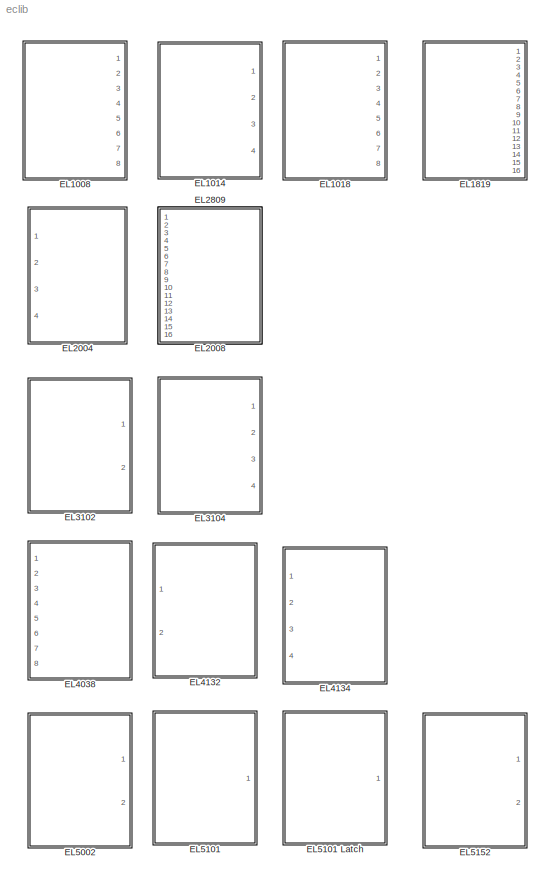
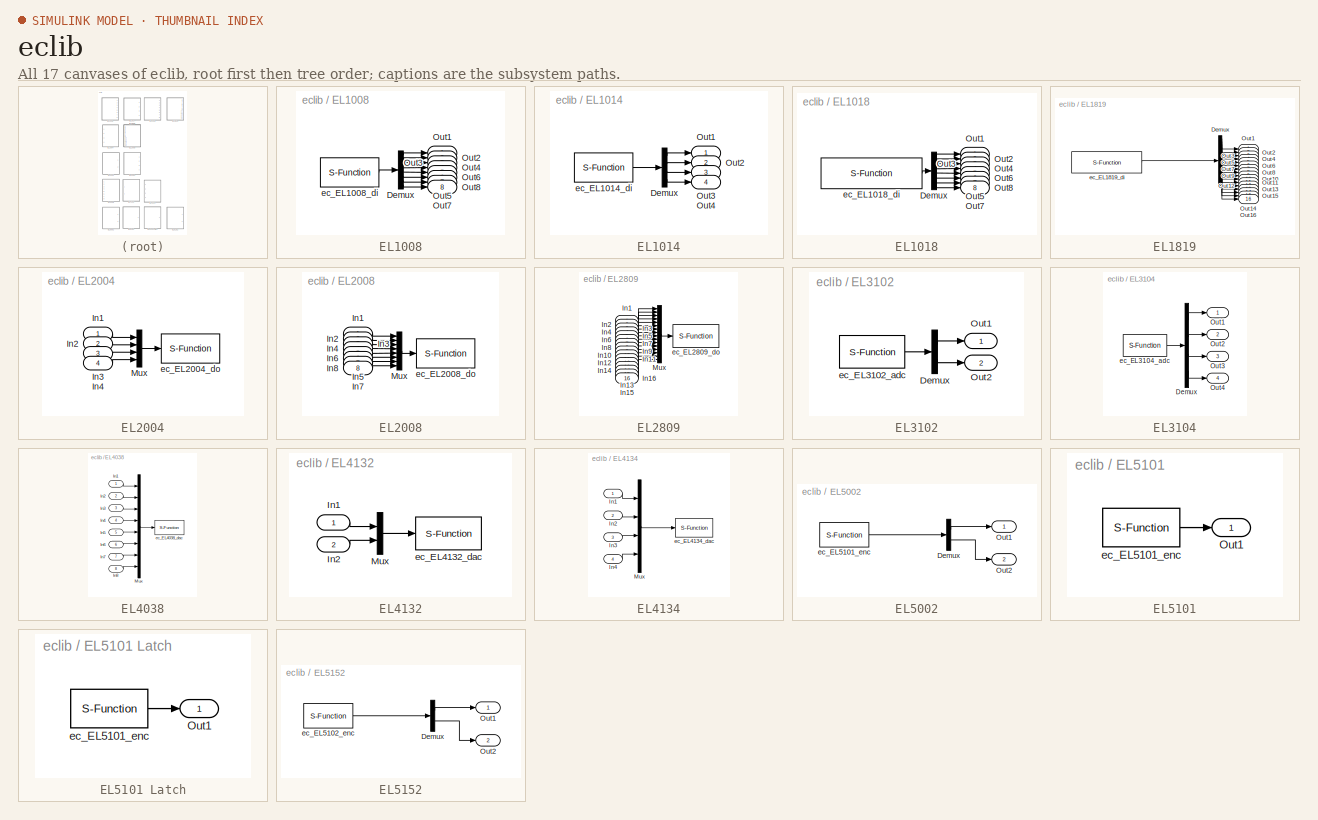
[diagram: thumbnail index - all 17 canvases of the model, root first then tree order]
MODEL eclib
KIND model
BLOCK [SubSystem] EL1008
  FunctionWithSeparateData = off
  MaskEnableString = on
  MaskHideContents = off
  MaskIconFrame = on
  MaskIconOpaque = on
  MaskIconRotate = none
  MaskIconUnits = autoscale
  MaskPortRotate = default
  MaskPromptString = Link id (>=0)
  MaskStyleString = edit
  MaskToolTipString = on
  MaskTunableValueString = on
  MaskType = EL1008
  MaskValueString = 0
  MaskVariables = link_id=@1;
  MaskVisibilityString = on
  MinAlgLoopOccurrences = off
  Opaque = off
  Ports = [0, 8]
  PropExecContextOutsideSubsystem = off
  RTWSystemCode = Auto
  RequestExecContextInheritance = off
  SID = 1
BLOCK [Demux] EL1008/Demux
  DisplayOption = bar
  Outputs = 8
  Ports = [1, 8]
  SID = 2
BLOCK [Outport] EL1008/Out1
  IconDisplay = Port number
  SID = 4
BLOCK [Outport] EL1008/Out2
  IconDisplay = Port number
  Port = 2
  SID = 5
BLOCK [Outport] EL1008/Out3
  IconDisplay = Port number
  Port = 3
  SID = 6
BLOCK [Outport] EL1008/Out4
  IconDisplay = Port number
  Port = 4
  SID = 7
BLOCK [Outport] EL1008/Out5
  IconDisplay = Port number
  Port = 5
  SID = 8
BLOCK [Outport] EL1008/Out6
  IconDisplay = Port number
  Port = 6
  SID = 9
BLOCK [Outport] EL1008/Out7
  IconDisplay = Port number
  Port = 7
  SID = 10
BLOCK [Outport] EL1008/Out8
  IconDisplay = Port number
  Port = 8
  SID = 11
BLOCK [S-Function] EL1008/ec_EL1008_di
  EnableBusSupport = off
  FunctionName = ec_EL1008_di
  MaskEnableString = on
  MaskIconFrame = on
  MaskIconOpaque = on
  MaskIconRotate = none
  MaskIconUnits = autoscale
  MaskPortRotate = default
  MaskPromptString = digital in id (start from 1)
  MaskStyleString = edit
  MaskToolTipString = on
  MaskTunableValueString = on
  MaskValueString = link_id
  MaskVariables = link_id=@1;
  MaskVisibilityString = on
  Parameters = link_id
  Ports = [0, 1]
  SID = 3
BLOCK [SubSystem] EL1014
  FunctionWithSeparateData = off
  MaskEnableString = on
  MaskHideContents = off
  MaskIconFrame = on
  MaskIconOpaque = on
  MaskIconRotate = none
  MaskIconUnits = autoscale
  MaskPortRotate = default
  MaskPromptString = Link id (>=0)
  MaskStyleString = edit
  MaskToolTipString = on
  MaskTunableValueString = on
  MaskType = EL1014
  MaskValueString = 0
  MaskVariables = link_id=&1;
  MaskVisibilityString = on
  MinAlgLoopOccurrences = off
  Opaque = off
  Ports = [0, 4]
  PropExecContextOutsideSubsystem = off
  RTWSystemCode = Auto
  RequestExecContextInheritance = off
  SID = 12
BLOCK [Demux] EL1014/Demux
  DisplayOption = bar
  Ports = [1, 4]
  SID = 13
BLOCK [Outport] EL1014/Out1
  IconDisplay = Port number
  SID = 15
BLOCK [Outport] EL1014/Out2
  IconDisplay = Port number
  Port = 2
  SID = 16
BLOCK [Outport] EL1014/Out3
  IconDisplay = Port number
  Port = 3
  SID = 17
BLOCK [Outport] EL1014/Out4
  IconDisplay = Port number
  Port = 4
  SID = 18
BLOCK [S-Function] EL1014/ec_EL1014_di
  EnableBusSupport = off
  FunctionName = ec_EL1014_di
  MaskEnableString = on
  MaskIconFrame = on
  MaskIconOpaque = on
  MaskIconRotate = none
  MaskIconUnits = autoscale
  MaskPortRotate = default
  MaskPromptString = digital in id (start from 1)
  MaskStyleString = edit
  MaskToolTipString = on
  MaskTunableValueString = on
  MaskValueString = link_id
  MaskVariables = link_id=@1;
  MaskVisibilityString = on
  Parameters = link_id
  Ports = [0, 1]
  SID = 14
BLOCK [SubSystem] EL1018
  FunctionWithSeparateData = off
  MaskEnableString = on
  MaskHideContents = off
  MaskIconFrame = on
  MaskIconOpaque = on
  MaskIconRotate = none
  MaskIconUnits = autoscale
  MaskPortRotate = default
  MaskPromptString = Link id (>=0)
  MaskStyleString = edit
  MaskToolTipString = on
  MaskTunableValueString = on
  MaskType = EL1008
  MaskValueString = 0
  MaskVariables = link_id=@1;
  MaskVisibilityString = on
  MinAlgLoopOccurrences = off
  Opaque = off
  Ports = [0, 8]
  PropExecContextOutsideSubsystem = off
  RTWSystemCode = Auto
  RequestExecContextInheritance = off
  SID = 19
BLOCK [Demux] EL1018/Demux
  DisplayOption = bar
  Outputs = 8
  Ports = [1, 8]
  SID = 20
BLOCK [Outport] EL1018/Out1
  IconDisplay = Port number
  SID = 22
BLOCK [Outport] EL1018/Out2
  IconDisplay = Port number
  Port = 2
  SID = 23
BLOCK [Outport] EL1018/Out3
  IconDisplay = Port number
  Port = 3
  SID = 24
BLOCK [Outport] EL1018/Out4
  IconDisplay = Port number
  Port = 4
  SID = 25
BLOCK [Outport] EL1018/Out5
  IconDisplay = Port number
  Port = 5
  SID = 26
BLOCK [Outport] EL1018/Out6
  IconDisplay = Port number
  Port = 6
  SID = 27
BLOCK [Outport] EL1018/Out7
  IconDisplay = Port number
  Port = 7
  SID = 28
BLOCK [Outport] EL1018/Out8
  IconDisplay = Port number
  Port = 8
  SID = 29
BLOCK [S-Function] EL1018/ec_EL1018_di
  EnableBusSupport = off
  FunctionName = ec_EL1018_di
  MaskEnableString = on
  MaskIconFrame = on
  MaskIconOpaque = on
  MaskIconRotate = none
  MaskIconUnits = autoscale
  MaskPortRotate = default
  MaskPromptString = digital in id (start from 1)
  MaskStyleString = edit
  MaskToolTipString = on
  MaskTunableValueString = on
  MaskValueString = link_id
  MaskVariables = link_id=@1;
  MaskVisibilityString = on
  Parameters = link_id
  Ports = [0, 1]
  SID = 21
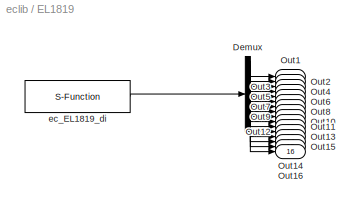
BLOCK [SubSystem] EL1819
  FunctionWithSeparateData = off
  MaskEnableString = on
  MaskHideContents = off
  MaskIconFrame = on
  MaskIconOpaque = on
  MaskIconRotate = none
  MaskIconUnits = autoscale
  MaskPortRotate = default
  MaskPromptString = Link id (>=0)
  MaskStyleString = edit
  MaskToolTipString = on
  MaskTunableValueString = on
  MaskType = EL1819
  MaskValueString = 0
  MaskVariables = link_id=@1;
  MaskVisibilityString = on
  MinAlgLoopOccurrences = off
  Opaque = off
  Ports = [0, 16]
  PropExecContextOutsideSubsystem = off
  RTWSystemCode = Auto
  RequestExecContextInheritance = off
  SID = 119
BLOCK [Demux] EL1819/Demux
  DisplayOption = bar
  Outputs = 16
  Ports = [1, 16]
  SID = 120
BLOCK [Outport] EL1819/Out1
  IconDisplay = Port number
  SID = 122
BLOCK [Outport] EL1819/Out10
  IconDisplay = Port number
  Port = 10
  SID = 131
BLOCK [Outport] EL1819/Out11
  IconDisplay = Port number
  Port = 11
  SID = 132
BLOCK [Outport] EL1819/Out12
  IconDisplay = Port number
  Port = 12
  SID = 133
BLOCK [Outport] EL1819/Out13
  IconDisplay = Port number
  Port = 13
  SID = 134
BLOCK [Outport] EL1819/Out14
  IconDisplay = Port number
  Port = 14
  SID = 135
BLOCK [Outport] EL1819/Out15
  IconDisplay = Port number
  Port = 15
  SID = 136
BLOCK [Outport] EL1819/Out16
  IconDisplay = Port number
  Port = 16
  SID = 137
BLOCK [Outport] EL1819/Out2
  IconDisplay = Port number
  Port = 2
  SID = 123
BLOCK [Outport] EL1819/Out3
  IconDisplay = Port number
  Port = 3
  SID = 124
BLOCK [Outport] EL1819/Out4
  IconDisplay = Port number
  Port = 4
  SID = 125
BLOCK [Outport] EL1819/Out5
  IconDisplay = Port number
  Port = 5
  SID = 126
BLOCK [Outport] EL1819/Out6
  IconDisplay = Port number
  Port = 6
  SID = 127
BLOCK [Outport] EL1819/Out7
  IconDisplay = Port number
  Port = 7
  SID = 128
BLOCK [Outport] EL1819/Out8
  IconDisplay = Port number
  Port = 8
  SID = 129
BLOCK [Outport] EL1819/Out9
  IconDisplay = Port number
  Port = 9
  SID = 130
BLOCK [S-Function] EL1819/ec_EL1819_di
  EnableBusSupport = off
  FunctionName = ec_EL1819_di
  MaskEnableString = on
  MaskIconFrame = on
  MaskIconOpaque = on
  MaskIconRotate = none
  MaskIconUnits = autoscale
  MaskPortRotate = default
  MaskPromptString = digital in id (start from 1)
  MaskStyleString = edit
  MaskToolTipString = on
  MaskTunableValueString = on
  MaskValueString = link_id
  MaskVariables = link_id=@1;
  MaskVisibilityString = on
  Parameters = link_id
  Ports = [0, 1]
  SID = 121
BLOCK [SubSystem] EL2004
  FunctionWithSeparateData = off
  MaskEnableString = on
  MaskHideContents = off
  MaskIconFrame = on
  MaskIconOpaque = on
  MaskIconRotate = none
  MaskIconUnits = autoscale
  MaskPortRotate = default
  MaskPromptString = Link id (>=0)
  MaskStyleString = edit
  MaskToolTipString = on
  MaskTunableValueString = on
  MaskType = EL2004
  MaskValueString = 0
  MaskVariables = link_id=@1;
  MaskVisibilityString = on
  MinAlgLoopOccurrences = off
  Opaque = off
  Ports = [4]
  PropExecContextOutsideSubsystem = off
  RTWSystemCode = Auto
  RequestExecContextInheritance = off
  SID = 30
BLOCK [Inport] EL2004/In1
  IconDisplay = Port number
  SID = 31
BLOCK [Inport] EL2004/In2
  IconDisplay = Port number
  Port = 2
  SID = 32
BLOCK [Inport] EL2004/In3
  IconDisplay = Port number
  Port = 3
  SID = 33
BLOCK [Inport] EL2004/In4
  IconDisplay = Port number
  Port = 4
  SID = 34
BLOCK [Mux] EL2004/Mux
  DisplayOption = bar
  Ports = [4, 1]
  SID = 35
BLOCK [S-Function] EL2004/ec_EL2004_do
  EnableBusSupport = off
  FunctionName = ec_EL2004_do
  MaskEnableString = on
  MaskIconFrame = on
  MaskIconOpaque = on
  MaskIconRotate = none
  MaskIconUnits = autoscale
  MaskPortRotate = default
  MaskPromptString = digital out id (start from 1)
  MaskStyleString = edit
  MaskToolTipString = on
  MaskTunableValueString = on
  MaskValueString = link_id
  MaskVariables = link_id=@1;
  MaskVisibilityString = on
  Parameters = link_id
  Ports = [1]
  SID = 36
BLOCK [SubSystem] EL2008
  FunctionWithSeparateData = off
  MaskEnableString = on
  MaskHideContents = off
  MaskIconFrame = on
  MaskIconOpaque = on
  MaskIconRotate = none
  MaskIconUnits = autoscale
  MaskPortRotate = default
  MaskPromptString = Link id (>=0)
  MaskStyleString = edit
  MaskToolTipString = on
  MaskTunableValueString = on
  MaskType = EL2008
  MaskValueString = 0
  MaskVariables = link_id=@1;
  MaskVisibilityString = on
  MinAlgLoopOccurrences = off
  Opaque = off
  Ports = [8]
  PropExecContextOutsideSubsystem = off
  RTWSystemCode = Auto
  RequestExecContextInheritance = off
  SID = 37
BLOCK [Inport] EL2008/In1
  IconDisplay = Port number
  SID = 38
BLOCK [Inport] EL2008/In2
  IconDisplay = Port number
  Port = 2
  SID = 39
BLOCK [Inport] EL2008/In3
  IconDisplay = Port number
  Port = 3
  SID = 40
BLOCK [Inport] EL2008/In4
  IconDisplay = Port number
  Port = 4
  SID = 41
BLOCK [Inport] EL2008/In5
  IconDisplay = Port number
  Port = 5
  SID = 42
BLOCK [Inport] EL2008/In6
  IconDisplay = Port number
  Port = 6
  SID = 43
BLOCK [Inport] EL2008/In7
  IconDisplay = Port number
  Port = 7
  SID = 44
BLOCK [Inport] EL2008/In8
  IconDisplay = Port number
  Port = 8
  SID = 45
BLOCK [Mux] EL2008/Mux
  DisplayOption = bar
  Inputs = 8
  Ports = [8, 1]
  SID = 46
BLOCK [S-Function] EL2008/ec_EL2008_do
  EnableBusSupport = off
  FunctionName = ec_EL2008_do
  MaskEnableString = on
  MaskIconFrame = on
  MaskIconOpaque = on
  MaskIconRotate = none
  MaskIconUnits = autoscale
  MaskPortRotate = default
  MaskPromptString = digital out id (start from 1)
  MaskStyleString = edit
  MaskToolTipString = on
  MaskTunableValueString = on
  MaskValueString = link_id
  MaskVariables = link_id=@1;
  MaskVisibilityString = on
  Parameters = link_id
  Ports = [1]
  SID = 47
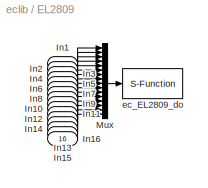
BLOCK [SubSystem] EL2809
  FunctionWithSeparateData = off
  MaskEnableString = on
  MaskHideContents = off
  MaskIconFrame = on
  MaskIconOpaque = on
  MaskIconRotate = none
  MaskIconUnits = autoscale
  MaskPortRotate = default
  MaskPromptString = Link id (>=0)
  MaskStyleString = edit
  MaskToolTipString = on
  MaskTunableValueString = on
  MaskType = EL2809
  MaskValueString = 1
  MaskVariables = link_id=@1;
  MaskVisibilityString = on
  MinAlgLoopOccurrences = off
  Opaque = off
  Ports = [16]
  PropExecContextOutsideSubsystem = off
  RTWSystemCode = Auto
  RequestExecContextInheritance = off
  SID = 237
BLOCK [Inport] EL2809/In1
  IconDisplay = Port number
  SID = 238
BLOCK [Inport] EL2809/In10
  IconDisplay = Port number
  Port = 10
  SID = 247
BLOCK [Inport] EL2809/In11
  IconDisplay = Port number
  Port = 11
  SID = 248
BLOCK [Inport] EL2809/In12
  IconDisplay = Port number
  Port = 12
  SID = 249
BLOCK [Inport] EL2809/In13
  IconDisplay = Port number
  Port = 13
  SID = 250
BLOCK [Inport] EL2809/In14
  IconDisplay = Port number
  Port = 14
  SID = 251
BLOCK [Inport] EL2809/In15
  IconDisplay = Port number
  Port = 15
  SID = 252
BLOCK [Inport] EL2809/In16
  IconDisplay = Port number
  Port = 16
  SID = 253
BLOCK [Inport] EL2809/In2
  IconDisplay = Port number
  Port = 2
  SID = 239
BLOCK [Inport] EL2809/In3
  IconDisplay = Port number
  Port = 3
  SID = 240
BLOCK [Inport] EL2809/In4
  IconDisplay = Port number
  Port = 4
  SID = 241
BLOCK [Inport] EL2809/In5
  IconDisplay = Port number
  Port = 5
  SID = 242
BLOCK [Inport] EL2809/In6
  IconDisplay = Port number
  Port = 6
  SID = 243
BLOCK [Inport] EL2809/In7
  IconDisplay = Port number
  Port = 7
  SID = 244
BLOCK [Inport] EL2809/In8
  IconDisplay = Port number
  Port = 8
  SID = 245
BLOCK [Inport] EL2809/In9
  IconDisplay = Port number
  Port = 9
  SID = 246
BLOCK [Mux] EL2809/Mux
  DisplayOption = bar
  Inputs = 16
  Ports = [16, 1]
  SID = 254
BLOCK [S-Function] EL2809/ec_EL2809_do
  EnableBusSupport = off
  FunctionName = ec_EL2809_do
  MaskEnableString = on
  MaskIconFrame = on
  MaskIconOpaque = on
  MaskIconRotate = none
  MaskIconUnits = autoscale
  MaskPortRotate = default
  MaskPromptString = digital out id (start from 1)
  MaskStyleString = edit
  MaskToolTipString = on
  MaskTunableValueString = on
  MaskValueString = link_id
  MaskVariables = link_id=@1;
  MaskVisibilityString = on
  Parameters = link_id
  Ports = [1]
  SID = 255
BLOCK [SubSystem] EL3102
  FunctionWithSeparateData = off
  MaskEnableString = on
  MaskHideContents = off
  MaskIconFrame = on
  MaskIconOpaque = on
  MaskIconRotate = none
  MaskIconUnits = autoscale
  MaskPortRotate = default
  MaskPromptString = Link id (>=0)
  MaskStyleString = edit
  MaskToolTipString = on
  MaskTunableValueString = on
  MaskType = EL3102
  MaskValueString = 0
  MaskVariables = link_id=@1;
  MaskVisibilityString = on
  MinAlgLoopOccurrences = off
  Opaque = off
  Ports = [0, 2]
  PropExecContextOutsideSubsystem = off
  RTWSystemCode = Auto
  RequestExecContextInheritance = off
  SID = 48
BLOCK [Demux] EL3102/Demux
  DisplayOption = bar
  Outputs = 2
  Ports = [1, 2]
  SID = 49
BLOCK [Outport] EL3102/Out1
  IconDisplay = Port number
  SID = 51
BLOCK [Outport] EL3102/Out2
  IconDisplay = Port number
  Port = 2
  SID = 52
BLOCK [S-Function] EL3102/ec_EL3102_adc
  EnableBusSupport = off
  FunctionName = ec_EL3102_adc
  MaskEnableString = on
  MaskIconFrame = on
  MaskIconOpaque = on
  MaskIconRotate = none
  MaskIconUnits = autoscale
  MaskPortRotate = default
  MaskPromptString = analog in id (start from 1)
  MaskStyleString = edit
  MaskToolTipString = on
  MaskTunableValueString = on
  MaskValueString = link_id
  MaskVariables = link_id=@1;
  MaskVisibilityString = on
  Parameters = link_id
  Ports = [0, 1]
  SID = 50
BLOCK [SubSystem] EL3104
  FunctionWithSeparateData = off
  MaskEnableString = on
  MaskHideContents = off
  MaskIconFrame = on
  MaskIconOpaque = on
  MaskIconRotate = none
  MaskIconUnits = autoscale
  MaskPortRotate = default
  MaskPromptString = Link id (>=0)
  MaskStyleString = edit
  MaskToolTipString = on
  MaskTunableValueString = on
  MaskType = EL3102
  MaskValueString = 0
  MaskVariables = link_id=@1;
  MaskVisibilityString = on
  MinAlgLoopOccurrences = off
  Opaque = off
  Ports = [0, 4]
  PropExecContextOutsideSubsystem = off
  RTWSystemCode = Auto
  RequestExecContextInheritance = off
  SID = 53
BLOCK [Demux] EL3104/Demux
  DisplayOption = bar
  Ports = [1, 4]
  SID = 54
BLOCK [Outport] EL3104/Out1
  IconDisplay = Port number
  SID = 56
BLOCK [Outport] EL3104/Out2
  IconDisplay = Port number
  Port = 2
  SID = 57
BLOCK [Outport] EL3104/Out3
  IconDisplay = Port number
  Port = 3
  SID = 58
BLOCK [Outport] EL3104/Out4
  IconDisplay = Port number
  Port = 4
  SID = 59
BLOCK [S-Function] EL3104/ec_EL3104_adc
  EnableBusSupport = off
  FunctionName = ec_EL3104_adc
  MaskEnableString = on
  MaskIconFrame = on
  MaskIconOpaque = on
  MaskIconRotate = none
  MaskIconUnits = autoscale
  MaskPortRotate = default
  MaskPromptString = analog in id (start from 1)
  MaskStyleString = edit
  MaskToolTipString = on
  MaskTunableValueString = on
  MaskValueString = link_id
  MaskVariables = link_id=@1;
  MaskVisibilityString = on
  Parameters = link_id
  Ports = [0, 1]
  SID = 55
BLOCK [SubSystem] EL4038
  FunctionWithSeparateData = off
  MaskEnableString = on
  MaskHideContents = off
  MaskIconFrame = on
  MaskIconOpaque = on
  MaskIconRotate = none
  MaskIconUnits = autoscale
  MaskPortRotate = default
  MaskPromptString = Link id (>=0)
  MaskStyleString = edit
  MaskToolTipString = on
  MaskTunableValueString = on
  MaskType = EL4038
  MaskValueString = 0
  MaskVariables = link_id=@1;
  MaskVisibilityString = on
  MinAlgLoopOccurrences = off
  Opaque = off
  Ports = [8]
  PropExecContextOutsideSubsystem = off
  RTWSystemCode = Auto
  RequestExecContextInheritance = off
  SID = 60
BLOCK [Inport] EL4038/In1
  IconDisplay = Port number
  SID = 61
BLOCK [Inport] EL4038/In2
  IconDisplay = Port number
  Port = 2
  SID = 62
BLOCK [Inport] EL4038/In3
  IconDisplay = Port number
  Port = 3
  SID = 63
BLOCK [Inport] EL4038/In4
  IconDisplay = Port number
  Port = 4
  SID = 64
BLOCK [Inport] EL4038/In5
  IconDisplay = Port number
  Port = 5
  SID = 65
BLOCK [Inport] EL4038/In6
  IconDisplay = Port number
  Port = 6
  SID = 66
BLOCK [Inport] EL4038/In7
  IconDisplay = Port number
  Port = 7
  SID = 67
BLOCK [Inport] EL4038/In8
  IconDisplay = Port number
  Port = 8
  SID = 68
BLOCK [Mux] EL4038/Mux
  DisplayOption = bar
  Inputs = 8
  Ports = [8, 1]
  SID = 69
BLOCK [S-Function] EL4038/ec_EL4038_dac
  EnableBusSupport = off
  FunctionName = ec_EL4038_dac
  MaskEnableString = on
  MaskIconFrame = on
  MaskIconOpaque = on
  MaskIconRotate = none
  MaskIconUnits = autoscale
  MaskPortRotate = default
  MaskPromptString = analog out id (start from 1)
  MaskStyleString = edit
  MaskToolTipString = on
  MaskTunableValueString = on
  MaskValueString = link_id
  MaskVariables = link_id=@1;
  MaskVisibilityString = on
  Parameters = link_id
  Ports = [1]
  SID = 70
BLOCK [SubSystem] EL4132
  FunctionWithSeparateData = off
  MaskEnableString = on
  MaskHideContents = off
  MaskIconFrame = on
  MaskIconOpaque = on
  MaskIconRotate = none
  MaskIconUnits = autoscale
  MaskPortRotate = default
  MaskPromptString = Link id (>=0)
  MaskStyleString = edit
  MaskToolTipString = on
  MaskTunableValueString = on
  MaskType = EL4132
  MaskValueString = 0
  MaskVariables = link_id=@1;
  MaskVisibilityString = on
  MinAlgLoopOccurrences = off
  Opaque = off
  Ports = [2]
  PropExecContextOutsideSubsystem = off
  RTWSystemCode = Auto
  RequestExecContextInheritance = off
  SID = 71
BLOCK [Inport] EL4132/In1
  IconDisplay = Port number
  SID = 72
BLOCK [Inport] EL4132/In2
  IconDisplay = Port number
  Port = 2
  SID = 73
BLOCK [Mux] EL4132/Mux
  DisplayOption = bar
  Inputs = 2
  Ports = [2, 1]
  SID = 74
BLOCK [S-Function] EL4132/ec_EL4132_dac
  EnableBusSupport = off
  FunctionName = ec_EL4132_dac
  MaskEnableString = on
  MaskIconFrame = on
  MaskIconOpaque = on
  MaskIconRotate = none
  MaskIconUnits = autoscale
  MaskPortRotate = default
  MaskPromptString = analog out id (start from 1)
  MaskStyleString = edit
  MaskToolTipString = on
  MaskTunableValueString = on
  MaskValueString = link_id
  MaskVariables = link_id=@1;
  MaskVisibilityString = on
  Parameters = link_id
  Ports = [1]
  SID = 75
BLOCK [SubSystem] EL4134
  FunctionWithSeparateData = off
  MaskEnableString = on
  MaskHideContents = off
  MaskIconFrame = on
  MaskIconOpaque = on
  MaskIconRotate = none
  MaskIconUnits = autoscale
  MaskPortRotate = default
  MaskPromptString = Link id (>=0)
  MaskStyleString = edit
  MaskToolTipString = on
  MaskTunableValueString = on
  MaskType = EL4134
  MaskValueString = 0
  MaskVariables = link_id=@1;
  MaskVisibilityString = on
  MinAlgLoopOccurrences = off
  Opaque = off
  Ports = [4]
  PropExecContextOutsideSubsystem = off
  RTWSystemCode = Auto
  RequestExecContextInheritance = off
  SID = 87
BLOCK [Inport] EL4134/In1
  IconDisplay = Port number
  SID = 88
BLOCK [Inport] EL4134/In2
  IconDisplay = Port number
  Port = 2
  SID = 89
BLOCK [Inport] EL4134/In3
  IconDisplay = Port number
  Port = 3
  SID = 92
BLOCK [Inport] EL4134/In4
  IconDisplay = Port number
  Port = 4
  SID = 93
BLOCK [Mux] EL4134/Mux
  DisplayOption = bar
  Ports = [4, 1]
  SID = 90
BLOCK [S-Function] EL4134/ec_EL4134_dac
  EnableBusSupport = off
  FunctionName = ec_EL4134_dac
  MaskEnableString = on
  MaskIconFrame = on
  MaskIconOpaque = on
  MaskIconRotate = none
  MaskIconUnits = autoscale
  MaskPortRotate = default
  MaskPromptString = analog out id (start from 1)
  MaskStyleString = edit
  MaskToolTipString = on
  MaskTunableValueString = on
  MaskValueString = link_id
  MaskVariables = link_id=@1;
  MaskVisibilityString = on
  Parameters = link_id
  Ports = [1]
  SID = 91
BLOCK [SubSystem] EL5002
  FunctionWithSeparateData = off
  MaskEnableString = on
  MaskHideContents = off
  MaskIconFrame = on
  MaskIconOpaque = on
  MaskIconRotate = none
  MaskIconUnits = autoscale
  MaskPortRotate = default
  MaskPromptString = Link id (>=0)
  MaskStyleString = edit
  MaskToolTipString = on
  MaskTunableValueString = on
  MaskType = EL5101
  MaskValueString = 0
  MaskVariables = link_id=@1;
  MaskVisibilityString = on
  MinAlgLoopOccurrences = off
  Opaque = off
  Ports = [0, 2]
  PropExecContextOutsideSubsystem = off
  RTWSystemCode = Auto
  RequestExecContextInheritance = off
  SID = 82
BLOCK [Demux] EL5002/Demux
  DisplayOption = bar
  Outputs = 2
  Ports = [1, 2]
  SID = 85
BLOCK [Outport] EL5002/Out1
  IconDisplay = Port number
  SID = 84
BLOCK [Outport] EL5002/Out2
  IconDisplay = Port number
  Port = 2
  SID = 86
BLOCK [S-Function] EL5002/ec_EL5101_enc
  EnableBusSupport = off
  FunctionName = ec_EL5002_ssi
  MaskEnableString = on
  MaskIconFrame = on
  MaskIconOpaque = on
  MaskIconRotate = none
  MaskIconUnits = autoscale
  MaskPortRotate = default
  MaskPromptString = encoder in id (start from 1)
  MaskStyleString = edit
  MaskToolTipString = on
  MaskTunableValueString = on
  MaskValueString = link_id
  MaskVariables = link_id=@1;
  MaskVisibilityString = on
  Parameters = link_id
  Ports = [0, 1]
  SID = 83
BLOCK [SubSystem] EL5101
  FunctionWithSeparateData = off
  MaskEnableString = on
  MaskHideContents = off
  MaskIconFrame = on
  MaskIconOpaque = on
  MaskIconRotate = none
  MaskIconUnits = autoscale
  MaskPortRotate = default
  MaskPromptString = Link id (>=0)
  MaskStyleString = edit
  MaskToolTipString = on
  MaskTunableValueString = on
  MaskType = EL5101
  MaskValueString = 0
  MaskVariables = link_id=@1;
  MaskVisibilityString = on
  MinAlgLoopOccurrences = off
  Opaque = off
  Ports = [0, 1]
  PropExecContextOutsideSubsystem = off
  RTWSystemCode = Auto
  RequestExecContextInheritance = off
  SID = 76
BLOCK [SubSystem] EL5101 Latch
  FunctionWithSeparateData = off
  MaskEnableString = on
  MaskHideContents = off
  MaskIconFrame = on
  MaskIconOpaque = on
  MaskIconRotate = none
  MaskIconUnits = autoscale
  MaskPortRotate = default
  MaskPromptString = Link id (>=0)
  MaskStyleString = edit
  MaskToolTipString = on
  MaskTunableValueString = on
  MaskType = EL5101
  MaskValueString = 0
  MaskVariables = link_id=@1;
  MaskVisibilityString = on
  MinAlgLoopOccurrences = off
  Opaque = off
  Ports = [0, 1]
  PropExecContextOutsideSubsystem = off
  RTWSystemCode = Auto
  RequestExecContextInheritance = off
  SID = 79
BLOCK [Outport] EL5101 Latch/Out1
  IconDisplay = Port number
  SID = 81
BLOCK [S-Function] EL5101 Latch/ec_EL5101_enc
  EnableBusSupport = off
  FunctionName = ec_EL5101_latch
  MaskEnableString = on
  MaskIconFrame = on
  MaskIconOpaque = on
  MaskIconRotate = none
  MaskIconUnits = autoscale
  MaskPortRotate = default
  MaskPromptString = encoder in id (start from 1)
  MaskStyleString = edit
  MaskToolTipString = on
  MaskTunableValueString = on
  MaskValueString = link_id
  MaskVariables = link_id=@1;
  MaskVisibilityString = on
  Parameters = link_id
  Ports = [0, 1]
  SID = 80
BLOCK [Outport] EL5101/Out1
  IconDisplay = Port number
  SID = 78
BLOCK [S-Function] EL5101/ec_EL5101_enc
  EnableBusSupport = off
  FunctionName = ec_EL5101_enc
  MaskEnableString = on
  MaskIconFrame = on
  MaskIconOpaque = on
  MaskIconRotate = none
  MaskIconUnits = autoscale
  MaskPortRotate = default
  MaskPromptString = encoder in id (start from 1)
  MaskStyleString = edit
  MaskToolTipString = on
  MaskTunableValueString = on
  MaskValueString = link_id
  MaskVariables = link_id=@1;
  MaskVisibilityString = on
  Parameters = link_id
  Ports = [0, 1]
  SID = 77
BLOCK [SubSystem] EL5152
  FunctionWithSeparateData = off
  MaskEnableString = on
  MaskHideContents = off
  MaskIconFrame = on
  MaskIconOpaque = on
  MaskIconRotate = none
  MaskIconUnits = autoscale
  MaskPortRotate = default
  MaskPromptString = Link id (>=0)
  MaskStyleString = edit
  MaskToolTipString = on
  MaskTunableValueString = on
  MaskType = EL5102
  MaskValueString = 0
  MaskVariables = link_id=@1;
  MaskVisibilityString = on
  MinAlgLoopOccurrences = off
  Opaque = off
  Ports = [0, 2]
  PropExecContextOutsideSubsystem = off
  RTWSystemCode = Auto
  RequestExecContextInheritance = off
  SID = 94
BLOCK [Demux] EL5152/Demux
  DisplayOption = bar
  Outputs = 2
  Ports = [1, 2]
  SID = 95
BLOCK [Outport] EL5152/Out1
  IconDisplay = Port number
  SID = 97
BLOCK [Outport] EL5152/Out2
  IconDisplay = Port number
  Port = 2
  SID = 98
BLOCK [S-Function] EL5152/ec_EL5102_enc
  EnableBusSupport = off
  FunctionName = ec_EL5152_enc
  MaskEnableString = on
  MaskIconFrame = on
  MaskIconOpaque = on
  MaskIconRotate = none
  MaskIconUnits = autoscale
  MaskPortRotate = default
  MaskPromptString = encoder in id (start from 1)
  MaskStyleString = edit
  MaskToolTipString = on
  MaskTunableValueString = on
  MaskValueString = link_id
  MaskVariables = link_id=@1;
  MaskVisibilityString = on
  Parameters = link_id
  Ports = [0, 1]
  SID = 96
LINE EL1008/Demux:1 -> EL1008/Out1:1
LINE EL1008/Demux:2 -> EL1008/Out2:1
LINE EL1008/Demux:3 -> EL1008/Out3:1
LINE EL1008/Demux:4 -> EL1008/Out4:1
LINE EL1008/Demux:5 -> EL1008/Out5:1
LINE EL1008/Demux:6 -> EL1008/Out6:1
LINE EL1008/Demux:7 -> EL1008/Out7:1
LINE EL1008/Demux:8 -> EL1008/Out8:1
LINE EL1008/ec_EL1008_di:1 -> EL1008/Demux:1
LINE EL1014/Demux:1 -> EL1014/Out1:1
LINE EL1014/Demux:2 -> EL1014/Out2:1
LINE EL1014/Demux:3 -> EL1014/Out3:1
LINE EL1014/Demux:4 -> EL1014/Out4:1
LINE EL1014/ec_EL1014_di:1 -> EL1014/Demux:1
LINE EL1018/Demux:1 -> EL1018/Out1:1
LINE EL1018/Demux:2 -> EL1018/Out2:1
LINE EL1018/Demux:3 -> EL1018/Out3:1
LINE EL1018/Demux:4 -> EL1018/Out4:1
LINE EL1018/Demux:5 -> EL1018/Out5:1
LINE EL1018/Demux:6 -> EL1018/Out6:1
LINE EL1018/Demux:7 -> EL1018/Out7:1
LINE EL1018/Demux:8 -> EL1018/Out8:1
LINE EL1018/ec_EL1018_di:1 -> EL1018/Demux:1
LINE EL1819/Demux:1 -> EL1819/Out1:1
LINE EL1819/Demux:10 -> EL1819/Out10:1
LINE EL1819/Demux:11 -> EL1819/Out11:1
LINE EL1819/Demux:12 -> EL1819/Out12:1
LINE EL1819/Demux:13 -> EL1819/Out13:1
LINE EL1819/Demux:14 -> EL1819/Out14:1
LINE EL1819/Demux:15 -> EL1819/Out15:1
LINE EL1819/Demux:16 -> EL1819/Out16:1
LINE EL1819/Demux:2 -> EL1819/Out2:1
LINE EL1819/Demux:3 -> EL1819/Out3:1
LINE EL1819/Demux:4 -> EL1819/Out4:1
LINE EL1819/Demux:5 -> EL1819/Out5:1
LINE EL1819/Demux:6 -> EL1819/Out6:1
LINE EL1819/Demux:7 -> EL1819/Out7:1
LINE EL1819/Demux:8 -> EL1819/Out8:1
LINE EL1819/Demux:9 -> EL1819/Out9:1
LINE EL1819/ec_EL1819_di:1 -> EL1819/Demux:1
LINE EL2004/In1:1 -> EL2004/Mux:1
LINE EL2004/In2:1 -> EL2004/Mux:2
LINE EL2004/In3:1 -> EL2004/Mux:3
LINE EL2004/In4:1 -> EL2004/Mux:4
LINE EL2004/Mux:1 -> EL2004/ec_EL2004_do:1
LINE EL2008/In1:1 -> EL2008/Mux:1
LINE EL2008/In2:1 -> EL2008/Mux:2
LINE EL2008/In3:1 -> EL2008/Mux:3
LINE EL2008/In4:1 -> EL2008/Mux:4
LINE EL2008/In5:1 -> EL2008/Mux:5
LINE EL2008/In6:1 -> EL2008/Mux:6
LINE EL2008/In7:1 -> EL2008/Mux:7
LINE EL2008/In8:1 -> EL2008/Mux:8
LINE EL2008/Mux:1 -> EL2008/ec_EL2008_do:1
LINE EL2809/In10:1 -> EL2809/Mux:10
LINE EL2809/In11:1 -> EL2809/Mux:11
LINE EL2809/In12:1 -> EL2809/Mux:12
LINE EL2809/In13:1 -> EL2809/Mux:13
LINE EL2809/In14:1 -> EL2809/Mux:14
LINE EL2809/In15:1 -> EL2809/Mux:15
LINE EL2809/In16:1 -> EL2809/Mux:16
LINE EL2809/In1:1 -> EL2809/Mux:1
LINE EL2809/In2:1 -> EL2809/Mux:2
LINE EL2809/In3:1 -> EL2809/Mux:3
LINE EL2809/In4:1 -> EL2809/Mux:4
LINE EL2809/In5:1 -> EL2809/Mux:5
LINE EL2809/In6:1 -> EL2809/Mux:6
LINE EL2809/In7:1 -> EL2809/Mux:7
LINE EL2809/In8:1 -> EL2809/Mux:8
LINE EL2809/In9:1 -> EL2809/Mux:9
LINE EL2809/Mux:1 -> EL2809/ec_EL2809_do:1
LINE EL3102/Demux:1 -> EL3102/Out1:1
LINE EL3102/Demux:2 -> EL3102/Out2:1
LINE EL3102/ec_EL3102_adc:1 -> EL3102/Demux:1
LINE EL3104/Demux:1 -> EL3104/Out1:1
LINE EL3104/Demux:2 -> EL3104/Out2:1
LINE EL3104/Demux:3 -> EL3104/Out3:1
LINE EL3104/Demux:4 -> EL3104/Out4:1
LINE EL3104/ec_EL3104_adc:1 -> EL3104/Demux:1
LINE EL4038/In1:1 -> EL4038/Mux:1
LINE EL4038/In2:1 -> EL4038/Mux:2
LINE EL4038/In3:1 -> EL4038/Mux:3
LINE EL4038/In4:1 -> EL4038/Mux:4
LINE EL4038/In5:1 -> EL4038/Mux:5
LINE EL4038/In6:1 -> EL4038/Mux:6
LINE EL4038/In7:1 -> EL4038/Mux:7
LINE EL4038/In8:1 -> EL4038/Mux:8
LINE EL4038/Mux:1 -> EL4038/ec_EL4038_dac:1
LINE EL4132/In1:1 -> EL4132/Mux:1
LINE EL4132/In2:1 -> EL4132/Mux:2
LINE EL4132/Mux:1 -> EL4132/ec_EL4132_dac:1
LINE EL4134/In1:1 -> EL4134/Mux:1
LINE EL4134/In2:1 -> EL4134/Mux:2
LINE EL4134/In3:1 -> EL4134/Mux:3
LINE EL4134/In4:1 -> EL4134/Mux:4
LINE EL4134/Mux:1 -> EL4134/ec_EL4134_dac:1
LINE EL5002/Demux:1 -> EL5002/Out1:1
LINE EL5002/Demux:2 -> EL5002/Out2:1
LINE EL5002/ec_EL5101_enc:1 -> EL5002/Demux:1
LINE EL5101 Latch/ec_EL5101_enc:1 -> EL5101 Latch/Out1:1
LINE EL5101/ec_EL5101_enc:1 -> EL5101/Out1:1
LINE EL5152/Demux:1 -> EL5152/Out1:1
LINE EL5152/Demux:2 -> EL5152/Out2:1
LINE EL5152/ec_EL5102_enc:1 -> EL5152/Demux:1
